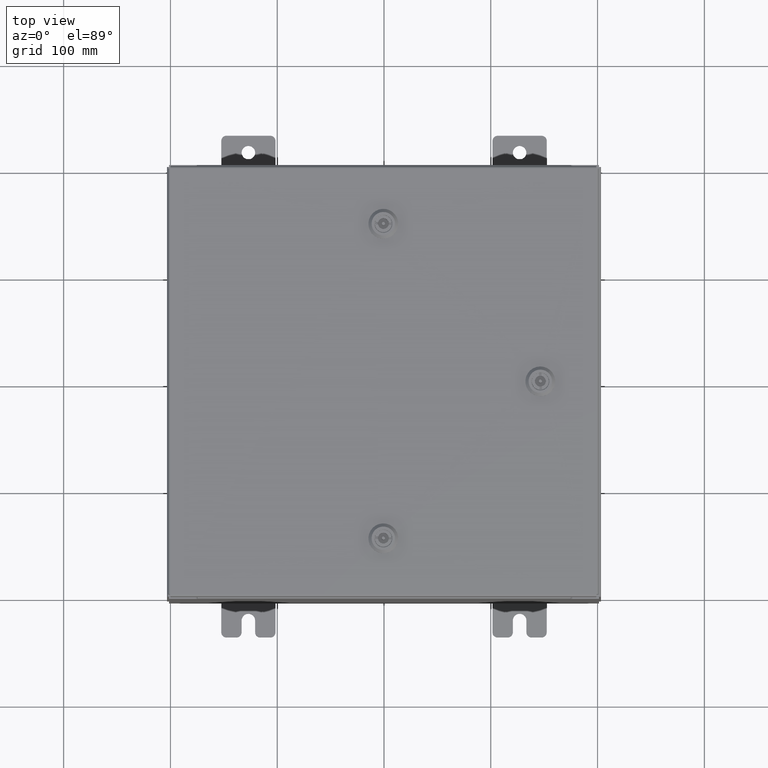
[diagram: clean part render]
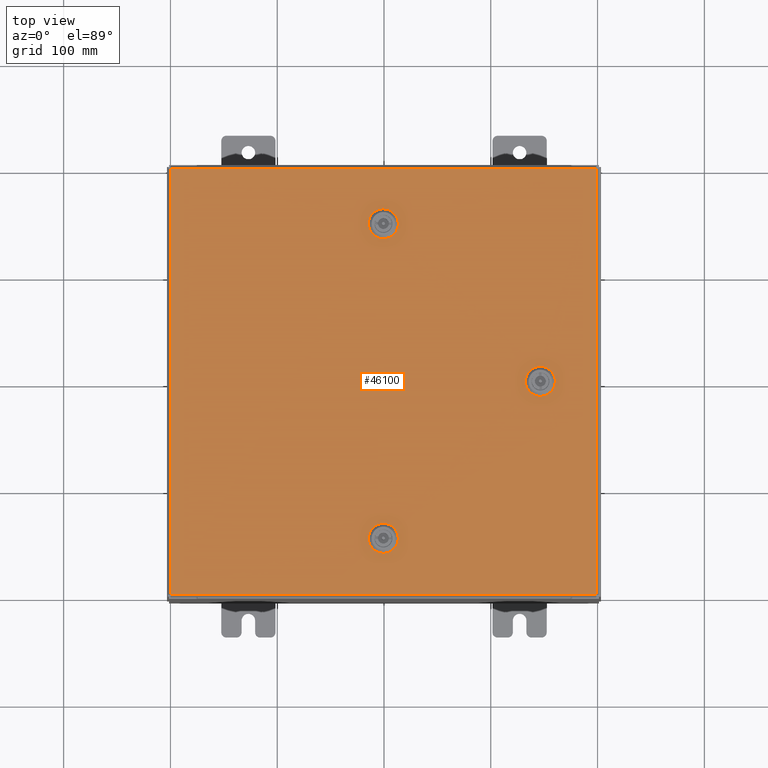
[diagram: same view with one face highlighted and labeled with its STEP entity id]
A machine part, top view. The second image highlights one B-rep face of the part: STEP entity #46100.
In plain terms, the highlighted planar face has unit normal (0, 0, -1).
Its self-contained STEP definition (entity closure, byte-faithful):
#19 = ORIENTED_EDGE ( 'NONE', *, *, #1794, .F. ) ;
#480 = DIRECTION ( 'NONE',  ( 1.000000000000000000, 0.0000000000000000000, 0.0000000000000000000 ) ) ;
#536 = DIRECTION ( 'NONE',  ( -1.000000000000000000, -0.0000000000000000000, -0.0000000000000000000 ) ) ;
#700 = CARTESIAN_POINT ( 'NONE',  ( 1.529834876451987200E-014, 5.787799999999992700, 0.0000000000000000000 ) ) ;
#918 = ORIENTED_EDGE ( 'NONE', *, *, #1853, .F. ) ;
#1172 = AXIS2_PLACEMENT_3D ( 'NONE', #44567, #15647, #49433 ) ;
#1443 = VERTEX_POINT ( 'NONE', #14483 ) ;
#1794 = EDGE_CURVE ( 'NONE', #55365, #1443, #25881, .T. ) ;
#1853 = EDGE_CURVE ( 'NONE', #17213, #36519, #48585, .T. ) ;
#2843 = VECTOR ( 'NONE', #15330, 39.37007874015748100 ) ;
#3177 = FACE_OUTER_BOUND ( 'NONE', #52098, .T. ) ;
#3186 = CARTESIAN_POINT ( 'NONE',  ( 5.392800000000011800, -0.1994523752678671000, 0.0000000000000000000 ) ) ;
#3464 = CARTESIAN_POINT ( 'NONE',  ( 0.1994523752678995500, 5.392799999999995800, 0.0000000000000000000 ) ) ;
#3558 = EDGE_CURVE ( 'NONE', #36856, #42859, #33372, .T. ) ;
#4026 = DIRECTION ( 'NONE',  ( 0.0000000000000000000, 0.0000000000000000000, 1.000000000000000000 ) ) ;
#5339 = AXIS2_PLACEMENT_3D ( 'NONE', #58292, #29389, #480 ) ;
#5395 = CARTESIAN_POINT ( 'NONE',  ( 7.849800000000000100, -7.849800000000000100, -2.219626494852214000E-016 ) ) ;
#5560 = VECTOR ( 'NONE', #47352, 39.37007874015748100 ) ;
#5575 = DIRECTION ( 'NONE',  ( 1.000000000000000000, 0.0000000000000000000, 0.0000000000000000000 ) ) ;
#5718 = EDGE_CURVE ( 'NONE', #59629, #43391, #12819, .T. ) ;
#5920 = EDGE_CURVE ( 'NONE', #47342, #12638, #46789, .T. ) ;
#6411 = EDGE_CURVE ( 'NONE', #18972, #36856, #21825, .T. ) ;
#6854 = ORIENTED_EDGE ( 'NONE', *, *, #18725, .F. ) ;
#6876 = VECTOR ( 'NONE', #13920, 39.37007874015748100 ) ;
#8488 = EDGE_CURVE ( 'NONE', #32441, #20539, #42856, .T. ) ;
#9178 = CARTESIAN_POINT ( 'NONE',  ( 0.1994523752678995500, -5.392799999999995800, -4.686755060382689600E-014 ) ) ;
#9595 = DIRECTION ( 'NONE',  ( -0.0000000000000000000, -6.982962677686266700E-015, 1.000000000000000000 ) ) ;
#10233 = DIRECTION ( 'NONE',  ( 0.0000000000000000000, 1.000000000000000000, 0.0000000000000000000 ) ) ;
#10492 = CARTESIAN_POINT ( 'NONE',  ( 5.392800000000015400, 0.1994523752679053800, 0.0000000000000000000 ) ) ;
#10889 = LINE ( 'NONE', #28174, #12385 ) ;
#10967 = VERTEX_POINT ( 'NONE', #50559 ) ;
#11741 = EDGE_LOOP ( 'NONE', ( #46617, #12212, #16830, #39410, #56195 ) ) ;
#12212 = ORIENTED_EDGE ( 'NONE', *, *, #26676, .F. ) ;
#12385 = VECTOR ( 'NONE', #47379, 39.37007874015748100 ) ;
#12422 = CARTESIAN_POINT ( 'NONE',  ( 6.182800000000003000, 0.1994523752679009100, 0.0000000000000000000 ) ) ;
#12638 = VERTEX_POINT ( 'NONE', #40131 ) ;
#12819 = LINE ( 'NONE', #32650, #25633 ) ;
#12926 = ORIENTED_EDGE ( 'NONE', *, *, #44511, .T. ) ;
#12929 = CARTESIAN_POINT ( 'NONE',  ( -7.849800000000000100, 7.849800000000000100, -2.048885995248197400E-016 ) ) ;
#13062 = EDGE_CURVE ( 'NONE', #39018, #13236, #61837, .T. ) ;
#13096 = VERTEX_POINT ( 'NONE', #13692 ) ;
#13236 = VERTEX_POINT ( 'NONE', #60215 ) ;
#13692 = CARTESIAN_POINT ( 'NONE',  ( -7.849800000000000100, -7.849800000000000100, -2.219626494852214000E-016 ) ) ;
#13920 = DIRECTION ( 'NONE',  ( -8.218046007208852600E-015, 1.000000000000000000, -0.0000000000000000000 ) ) ;
#14483 = CARTESIAN_POINT ( 'NONE',  ( 0.4425000000000126100, 5.787799999999992700, 0.0000000000000000000 ) ) ;
#14487 = ORIENTED_EDGE ( 'NONE', *, *, #33496, .F. ) ;
#15330 = DIRECTION ( 'NONE',  ( -1.095739467627836100E-014, -1.000000000000000000, 0.0000000000000000000 ) ) ;
#15647 = DIRECTION ( 'NONE',  ( 0.0000000000000000000, 0.0000000000000000000, 1.000000000000000000 ) ) ;
#15978 = FACE_BOUND ( 'NONE', #11741, .T. ) ;
#16173 = CARTESIAN_POINT ( 'NONE',  ( 6.182800000000007400, -0.1994523752678676000, 0.0000000000000000000 ) ) ;
#16290 = CARTESIAN_POINT ( 'NONE',  ( 0.1994523752679067700, 6.182799999999984300, 0.0000000000000000000 ) ) ;
#16830 = ORIENTED_EDGE ( 'NONE', *, *, #26614, .F. ) ;
#17123 = DIRECTION ( 'NONE',  ( -1.000000000000000000, 0.0000000000000000000, -0.0000000000000000000 ) ) ;
#17213 = VERTEX_POINT ( 'NONE', #3186 ) ;
#18365 = LINE ( 'NONE', #42492, #5560 ) ;
#18725 = EDGE_CURVE ( 'NONE', #10967, #47342, #41210, .T. ) ;
#18972 = VERTEX_POINT ( 'NONE', #37805 ) ;
#19036 = CIRCLE ( 'NONE', #45280, 0.4424999999999972800 ) ;
#19169 = DIRECTION ( 'NONE',  ( 1.000000000000000000, 2.739348669069617500E-015, -0.0000000000000000000 ) ) ;
#19712 = LINE ( 'NONE', #52365, #6876 ) ;
#20534 = VECTOR ( 'NONE', #536, 39.37007874015748100 ) ;
#20539 = VERTEX_POINT ( 'NONE', #41875 ) ;
#21308 = AXIS2_PLACEMENT_3D ( 'NONE', #38504, #9595, #43346 ) ;
#21749 = DIRECTION ( 'NONE',  ( -0.0000000000000000000, -6.982962677686266700E-015, 1.000000000000000000 ) ) ;
#21825 = LINE ( 'NONE', #5395, #61876 ) ;
#21939 = AXIS2_PLACEMENT_3D ( 'NONE', #50685, #21749, #55541 ) ;
#22515 = EDGE_LOOP ( 'NONE', ( #36794, #918, #22924, #25746 ) ) ;
#22924 = ORIENTED_EDGE ( 'NONE', *, *, #54055, .F. ) ;
#24692 = CARTESIAN_POINT ( 'NONE',  ( 0.1994523752679070700, -6.182799999999984300, -5.238409111919896100E-014 ) ) ;
#25633 = VECTOR ( 'NONE', #37499, 39.37007874015748100 ) ;
#25746 = ORIENTED_EDGE ( 'NONE', *, *, #13062, .F. ) ;
#25881 = CIRCLE ( 'NONE', #31458, 0.4424999999999973400 ) ;
#26047 = EDGE_LOOP ( 'NONE', ( #36558, #53830, #6854, #14487, #19 ) ) ;
#26198 = DIRECTION ( 'NONE',  ( -0.0000000000000000000, -6.982962677686266700E-015, 1.000000000000000000 ) ) ;
#26614 = EDGE_CURVE ( 'NONE', #20539, #37302, #60576, .T. ) ;
#26676 = EDGE_CURVE ( 'NONE', #37302, #59629, #57540, .T. ) ;
#28174 = CARTESIAN_POINT ( 'NONE',  ( -7.849800000000000100, 7.849800000000000100, -2.048885995248197400E-016 ) ) ;
#28237 = EDGE_CURVE ( 'NONE', #36519, #39018, #19712, .T. ) ;
#28288 = CARTESIAN_POINT ( 'NONE',  ( 1.529834876451987200E-014, 5.787799999999992700, 0.0000000000000000000 ) ) ;
#28308 = VECTOR ( 'NONE', #19169, 39.37007874015748100 ) ;
#29389 = DIRECTION ( 'NONE',  ( 0.0000000000000000000, 0.0000000000000000000, 1.000000000000000000 ) ) ;
#29446 = CARTESIAN_POINT ( 'NONE',  ( 7.849800000000000100, 7.849800000000000100, -2.219626494852214000E-016 ) ) ;
#31458 = AXIS2_PLACEMENT_3D ( 'NONE', #700, #34493, #5575 ) ;
#32441 = VERTEX_POINT ( 'NONE', #41052 ) ;
#32629 = CARTESIAN_POINT ( 'NONE',  ( 7.849800000000000100, 7.849800000000000100, -2.219626494852214000E-016 ) ) ;
#32650 = CARTESIAN_POINT ( 'NONE',  ( 0.1994523752679067700, -6.182799999999984300, -5.238409111919896100E-014 ) ) ;
#32921 = CARTESIAN_POINT ( 'NONE',  ( 5.787800000000007800, 1.529834876451990400E-014, 0.0000000000000000000 ) ) ;
#33155 = DIRECTION ( 'NONE',  ( 1.000000000000000000, 0.0000000000000000000, 0.0000000000000000000 ) ) ;
#33372 = LINE ( 'NONE', #29446, #20534 ) ;
#33496 = EDGE_CURVE ( 'NONE', #1443, #10967, #54239, .T. ) ;
#34493 = DIRECTION ( 'NONE',  ( 0.0000000000000000000, 0.0000000000000000000, 1.000000000000000000 ) ) ;
#34927 = VECTOR ( 'NONE', #38085, 39.37007874015748100 ) ;
#35550 = ORIENTED_EDGE ( 'NONE', *, *, #3558, .T. ) ;
#36519 = VERTEX_POINT ( 'NONE', #16173 ) ;
#36558 = ORIENTED_EDGE ( 'NONE', *, *, #37716, .F. ) ;
#36794 = ORIENTED_EDGE ( 'NONE', *, *, #28237, .F. ) ;
#36856 = VERTEX_POINT ( 'NONE', #32629 ) ;
#37302 = VERTEX_POINT ( 'NONE', #54866 ) ;
#37499 = DIRECTION ( 'NONE',  ( 1.000000000000000000, 1.369674334534795400E-014, 9.732121487607481600E-029 ) ) ;
#37716 = EDGE_CURVE ( 'NONE', #12638, #55365, #52507, .T. ) ;
#37771 = DIRECTION ( 'NONE',  ( 1.000000000000000000, 0.0000000000000000000, 0.0000000000000000000 ) ) ;
#37805 = CARTESIAN_POINT ( 'NONE',  ( 7.849800000000000100, -7.849800000000000100, -2.219626494852214000E-016 ) ) ;
#38085 = DIRECTION ( 'NONE',  ( -1.000000000000000000, 2.739348669069617500E-015, 1.946424297521515400E-029 ) ) ;
#38504 = CARTESIAN_POINT ( 'NONE',  ( 1.529834876451987200E-014, -5.787799999999992700, -4.962582086151294400E-014 ) ) ;
#38671 = EDGE_CURVE ( 'NONE', #42859, #13096, #10889, .T. ) ;
#39018 = VERTEX_POINT ( 'NONE', #12422 ) ;
#39410 = ORIENTED_EDGE ( 'NONE', *, *, #8488, .F. ) ;
#40131 = CARTESIAN_POINT ( 'NONE',  ( -0.1994523752678689600, 5.392799999999994900, 0.0000000000000000000 ) ) ;
#40362 = DIRECTION ( 'NONE',  ( -1.000000000000000000, 1.369674334534795400E-014, 0.0000000000000000000 ) ) ;
#41052 = CARTESIAN_POINT ( 'NONE',  ( 0.4425000000000126100, -5.787799999999992700, -4.962582086151294400E-014 ) ) ;
#41083 = AXIS2_PLACEMENT_3D ( 'NONE', #32921, #4026, #37771 ) ;
#41206 = PLANE ( 'NONE',  #61488 ) ;
#41210 = LINE ( 'NONE', #16290, #54062 ) ;
#41875 = CARTESIAN_POINT ( 'NONE',  ( 0.1994523752678995500, -5.392799999999995800, -4.686755060382689600E-014 ) ) ;
#42492 = CARTESIAN_POINT ( 'NONE',  ( -7.849800000000000100, -7.849800000000000100, -2.219626494852214000E-016 ) ) ;
#42856 = CIRCLE ( 'NONE', #21939, 0.4424999999999972800 ) ;
#42859 = VERTEX_POINT ( 'NONE', #12929 ) ;
#43183 = FACE_BOUND ( 'NONE', #26047, .T. ) ;
#43346 = DIRECTION ( 'NONE',  ( 0.0000000000000000000, 1.000000000000000000, 6.982962677686252500E-015 ) ) ;
#43391 = VERTEX_POINT ( 'NONE', #24692 ) ;
#44367 = LINE ( 'NONE', #10492, #2843 ) ;
#44511 = EDGE_CURVE ( 'NONE', #13096, #18972, #18365, .T. ) ;
#44567 = CARTESIAN_POINT ( 'NONE',  ( 5.787800000000007800, 1.529834876451990400E-014, 0.0000000000000000000 ) ) ;
#45280 = AXIS2_PLACEMENT_3D ( 'NONE', #55139, #26198, #59977 ) ;
#45998 = EDGE_CURVE ( 'NONE', #43391, #32441, #19036, .T. ) ;
#46043 = DIRECTION ( 'NONE',  ( 0.0000000000000000000, 0.0000000000000000000, -1.000000000000000000 ) ) ;
#46100 = ADVANCED_FACE ( 'NONE', ( #53031, #15978, #43183, #3177 ), #41206, .F. ) ;
#46617 = ORIENTED_EDGE ( 'NONE', *, *, #5718, .F. ) ;
#46789 = CIRCLE ( 'NONE', #5339, 0.4424999999999979500 ) ;
#47342 = VERTEX_POINT ( 'NONE', #59808 ) ;
#47352 = DIRECTION ( 'NONE',  ( 1.000000000000000000, -0.0000000000000000000, -0.0000000000000000000 ) ) ;
#47379 = DIRECTION ( 'NONE',  ( 0.0000000000000000000, -1.000000000000000000, 0.0000000000000000000 ) ) ;
#47877 = CARTESIAN_POINT ( 'NONE',  ( 0.1994523752678995500, 5.392799999999995800, 0.0000000000000000000 ) ) ;
#48585 = CIRCLE ( 'NONE', #1172, 0.4424999999999983400 ) ;
#49433 = DIRECTION ( 'NONE',  ( 1.000000000000000000, 0.0000000000000000000, 0.0000000000000000000 ) ) ;
#50559 = CARTESIAN_POINT ( 'NONE',  ( 0.1994523752679068500, 6.182799999999984300, 0.0000000000000000000 ) ) ;
#50685 = CARTESIAN_POINT ( 'NONE',  ( 1.529834876451987200E-014, -5.787799999999992700, -4.962582086151294400E-014 ) ) ;
#51509 = ORIENTED_EDGE ( 'NONE', *, *, #6411, .T. ) ;
#52098 = EDGE_LOOP ( 'NONE', ( #12926, #51509, #35550, #59257 ) ) ;
#52365 = CARTESIAN_POINT ( 'NONE',  ( 6.182800000000003000, 0.1994523752679009100, 0.0000000000000000000 ) ) ;
#52507 = LINE ( 'NONE', #47877, #28308 ) ;
#53031 = FACE_BOUND ( 'NONE', #22515, .T. ) ;
#53830 = ORIENTED_EDGE ( 'NONE', *, *, #5920, .F. ) ;
#54055 = EDGE_CURVE ( 'NONE', #13236, #17213, #44367, .T. ) ;
#54062 = VECTOR ( 'NONE', #40362, 39.37007874015748100 ) ;
#54239 = CIRCLE ( 'NONE', #59235, 0.4424999999999973400 ) ;
#54866 = CARTESIAN_POINT ( 'NONE',  ( -0.1994523752678689600, -5.392799999999994900, -4.686755060382689000E-014 ) ) ;
#55139 = CARTESIAN_POINT ( 'NONE',  ( 1.529834876451987200E-014, -5.787799999999992700, -4.962582086151294400E-014 ) ) ;
#55365 = VERTEX_POINT ( 'NONE', #3464 ) ;
#55541 = DIRECTION ( 'NONE',  ( 0.0000000000000000000, 1.000000000000000000, 6.982962677686269100E-015 ) ) ;
#55554 = CARTESIAN_POINT ( 'NONE',  ( 0.0000000000000000000, 0.0000000000000000000, 0.0000000000000000000 ) ) ;
#56195 = ORIENTED_EDGE ( 'NONE', *, *, #45998, .F. ) ;
#57540 = CIRCLE ( 'NONE', #21308, 0.4424999999999983400 ) ;
#58292 = CARTESIAN_POINT ( 'NONE',  ( 1.529834876451987200E-014, 5.787799999999992700, 0.0000000000000000000 ) ) ;
#59235 = AXIS2_PLACEMENT_3D ( 'NONE', #28288, #62058, #33155 ) ;
#59257 = ORIENTED_EDGE ( 'NONE', *, *, #38671, .T. ) ;
#59542 = CARTESIAN_POINT ( 'NONE',  ( -0.1994523752678657400, -6.182799999999990500, 0.0000000000000000000 ) ) ;
#59629 = VERTEX_POINT ( 'NONE', #59542 ) ;
#59808 = CARTESIAN_POINT ( 'NONE',  ( -0.1994523752678657400, 6.182799999999989600, 0.0000000000000000000 ) ) ;
#59977 = DIRECTION ( 'NONE',  ( 0.0000000000000000000, 1.000000000000000000, 6.982962677686269100E-015 ) ) ;
#60215 = CARTESIAN_POINT ( 'NONE',  ( 5.392800000000015400, 0.1994523752679058200, 0.0000000000000000000 ) ) ;
#60576 = LINE ( 'NONE', #9178, #34927 ) ;
#61488 = AXIS2_PLACEMENT_3D ( 'NONE', #55554, #46043, #17123 ) ;
#61837 = CIRCLE ( 'NONE', #41083, 0.4424999999999972800 ) ;
#61876 = VECTOR ( 'NONE', #10233, 39.37007874015748100 ) ;
#62058 = DIRECTION ( 'NONE',  ( 0.0000000000000000000, 0.0000000000000000000, 1.000000000000000000 ) ) ;